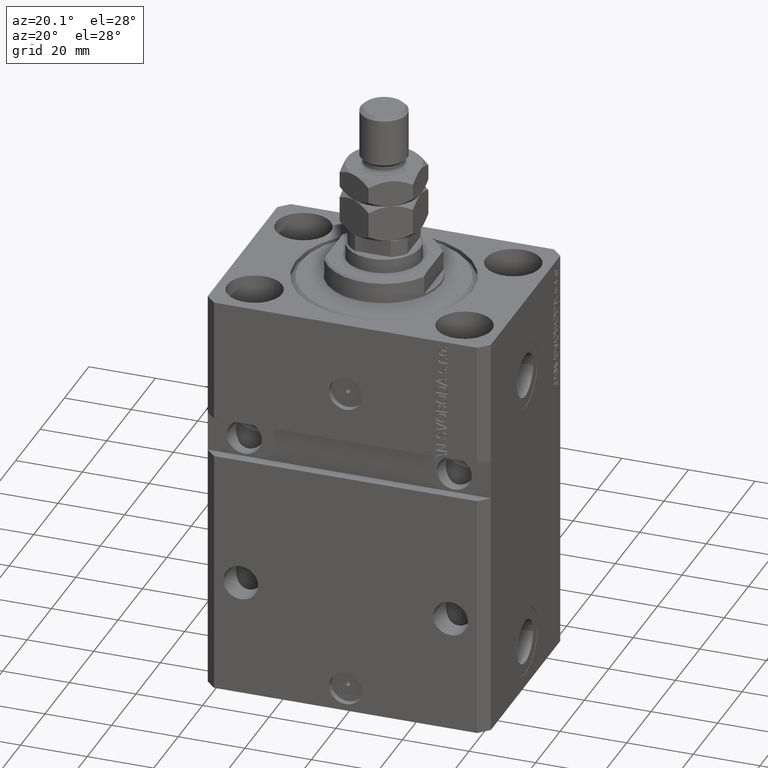
[diagram: clean part render]
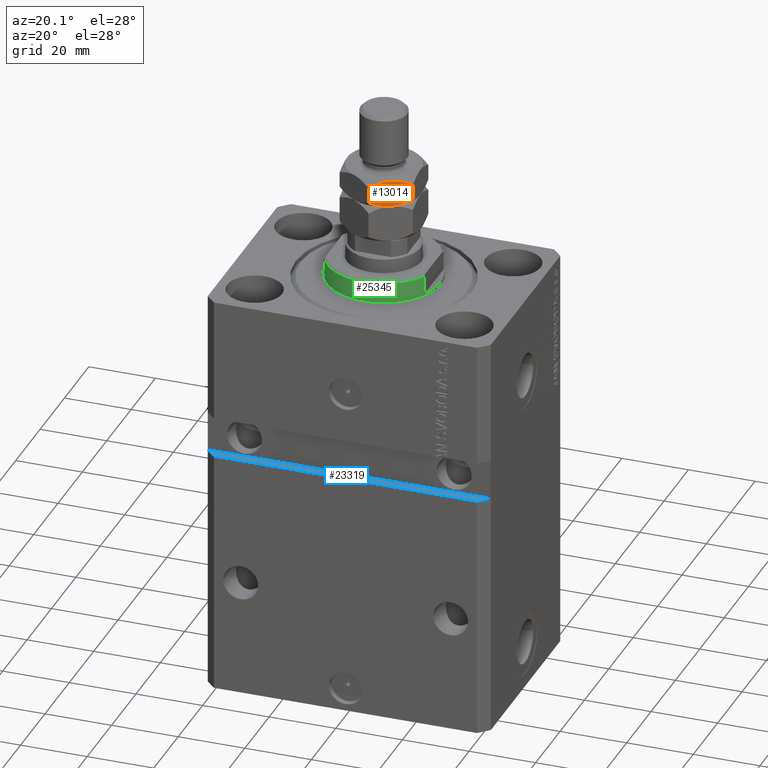
[diagram: same view with three faces highlighted in distinct colors, each labeled with its STEP entity id]
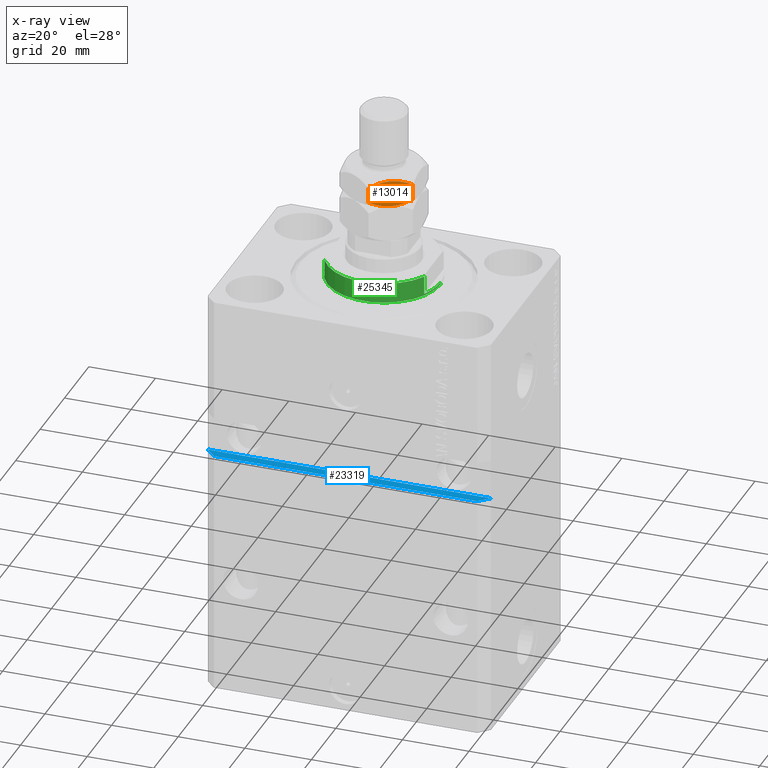
[diagram: x-ray of the same camera — body ghosted, the three highlighted faces saturated]
A machine part, auxiliary view with three faces highlighted in distinct colors.
The next image is the same camera in x-ray (body ghosted, the three faces saturated) — at least one of them is partly hidden behind the body in this view.
Their STEP definitions:

[orange] entity #13014 — the highlighted planar face has unit normal (-0.5, 0.866, 0).
#262 = CARTESIAN_POINT ( 'NONE',  ( 7.420105971005177103, -8.417705742396377033, 11.20812207486707557 ) ) ;
#505 = CARTESIAN_POINT ( 'NONE',  ( 10.13752086928278295, -6.848805519375900985, 12.20375336388174681 ) ) ;
#903 = CARTESIAN_POINT ( 'NONE',  ( -1.114322647986502597E-15, -12.70170592217176697, 17.29829407782823125 ) ) ;
#1904 = VECTOR ( 'NONE', #17535, 1000.000000000000000 ) ;
#2282 = CARTESIAN_POINT ( 'NONE',  ( 0.8614806024966414899, -12.20432986441868906, 12.20432986441860912 ) ) ;
#2583 = AXIS2_PLACEMENT_3D ( 'NONE', #22968, #30097, #33888 ) ;
#3888 = CARTESIAN_POINT ( 'NONE',  ( 10.99999999999999645, -6.350852961085881709, 19.00000000000000000 ) ) ;
#4256 = CARTESIAN_POINT ( 'NONE',  ( 5.499999999999998224, -9.526279441628817679, 19.00000000000000000 ) ) ;
#4608 = VERTEX_POINT ( 'NONE', #43131 ) ;
#6275 = VECTOR ( 'NONE', #8182, 1000.000000000000000 ) ;
#6341 = VERTEX_POINT ( 'NONE', #20393 ) ;
#6948 = CARTESIAN_POINT ( 'NONE',  ( -6.797443497229144639E-16, -12.70170592217176697, 12.70170592217176697 ) ) ;
#7354 = CARTESIAN_POINT ( 'NONE',  ( 3.115032419653386064, -10.90324111615047187, 18.67178078790958295 ) ) ;
#7446 = ORIENTED_EDGE ( 'NONE', *, *, #42311, .F. ) ;
#7883 = CARTESIAN_POINT ( 'NONE',  ( 5.499999999999994671, -9.526279441628823008, 11.00000000000000000 ) ) ;
#7996 = ORIENTED_EDGE ( 'NONE', *, *, #10793, .F. ) ;
#8182 = DIRECTION ( 'NONE',  ( -0.000000000000000000, -0.000000000000000000, -1.000000000000000000 ) ) ;
#10685 = EDGE_CURVE ( 'NONE', #26580, #37027, #15919, .T. ) ;
#10793 = EDGE_CURVE ( 'NONE', #37027, #4608, #21540, .T. ) ;
#11213 = CARTESIAN_POINT ( 'NONE',  ( 9.255521992360788985, -7.358027808391761404, 11.78062338754677718 ) ) ;
#11377 = CARTESIAN_POINT ( 'NONE',  ( 4.529374112020106757, -10.08667055933643830, 18.95634070256486936 ) ) ;
#11796 = CARTESIAN_POINT ( 'NONE',  ( -1.114322647986502597E-15, -12.70170592217176697, 17.29829407782823125 ) ) ;
#12769 = CARTESIAN_POINT ( 'NONE',  ( 5.499999999999994671, -9.526279441628823008, 11.00000000000000000 ) ) ;
#13014 = ADVANCED_FACE ( 'NONE', ( #16072 ), #19867, .F. ) ;
#14948 = EDGE_CURVE ( 'NONE', #28725, #33338, #40080, .T. ) ;
#15919 = B_SPLINE_CURVE_WITH_KNOTS ( 'NONE', 3,
 ( #903, #18268, #25162, #7354, #29440, #11377, #25642, #4256 ),
 .UNSPECIFIED., .F., .F.,
 ( 4, 2, 2, 4 ),
 ( 2.544311317622334175E-07, 0.003291871675740033840, 0.004937680298044169920, 0.006583488920348303831 ),
 .UNSPECIFIED. ) ;
#16072 = FACE_OUTER_BOUND ( 'NONE', #44674, .T. ) ;
#16792 = CARTESIAN_POINT ( 'NONE',  ( -6.797443497229144639E-16, -12.70170592217176697, 12.70170592217176697 ) ) ;
#17535 = DIRECTION ( 'NONE',  ( -0.000000000000000000, -0.000000000000000000, -1.000000000000000000 ) ) ;
#17876 = CARTESIAN_POINT ( 'NONE',  ( 7.884967580346608607, -8.149317767107175925, 11.32821921209040283 ) ) ;
#18268 = CARTESIAN_POINT ( 'NONE',  ( 0.8624791307172129384, -12.20375336388175036, 17.79624663611825142 ) ) ;
#19867 = PLANE ( 'NONE',  #2583 ) ;
#20067 = CARTESIAN_POINT ( 'NONE',  ( 5.499999999999994671, -9.526279441628823008, 11.00000000000000000 ) ) ;
#20393 = CARTESIAN_POINT ( 'NONE',  ( 10.99999999999999645, -6.350852961085881709, 12.70170592217176164 ) ) ;
#21540 = B_SPLINE_CURVE_WITH_KNOTS ( 'NONE', 3,
 ( #27269, #30140, #34385, #23247, #44607, #41745 ),
 .UNSPECIFIED., .F., .F.,
 ( 4, 2, 4 ),
 ( 0.006583488920348303831, 0.009852050593448713131, 0.01312061226654912330 ),
 .UNSPECIFIED. ) ;
#22968 = CARTESIAN_POINT ( 'NONE',  ( -1.239917741184855327E-15, -12.70170592217176697, 19.00000000000000000 ) ) ;
#23231 = CARTESIAN_POINT ( 'NONE',  ( 1.748214531935804894, -11.69237379155740975, 11.77768480452202837 ) ) ;
#23247 = CARTESIAN_POINT ( 'NONE',  ( 9.251785468064186446, -7.360185091700238935, 18.22231519547796097 ) ) ;
#23933 = CARTESIAN_POINT ( 'NONE',  ( 4.543329525579420824, -10.07861339756131080, 11.00000000000000888 ) ) ;
#24415 = CARTESIAN_POINT ( 'NONE',  ( -1.239917741184855327E-15, -12.70170592217176697, 19.00000000000000000 ) ) ;
#25162 = CARTESIAN_POINT ( 'NONE',  ( 1.744478007639206574, -11.69453107486588728, 18.21937661245321749 ) ) ;
#25642 = CARTESIAN_POINT ( 'NONE',  ( 5.018290712253357988, -9.804394428580488707, 18.99999999999999645 ) ) ;
#26580 = VERTEX_POINT ( 'NONE', #11796 ) ;
#27269 = CARTESIAN_POINT ( 'NONE',  ( 5.499999999999998224, -9.526279441628817679, 19.00000000000000000 ) ) ;
#28725 = VERTEX_POINT ( 'NONE', #20067 ) ;
#29149 = ORIENTED_EDGE ( 'NONE', *, *, #44463, .F. ) ;
#29440 = CARTESIAN_POINT ( 'NONE',  ( 3.579894028994818900, -10.63485314086127076, 18.79187792513291910 ) ) ;
#30097 = DIRECTION ( 'NONE',  ( -0.5000000000000003331, 0.8660254037844385966, 0.000000000000000000 ) ) ;
#30140 = CARTESIAN_POINT ( 'NONE',  ( 6.456670474420574735, -8.973945485696335211, 18.99999999999999289 ) ) ;
#32109 = CARTESIAN_POINT ( 'NONE',  ( 6.470625887979892354, -8.965888323921216596, 11.04365929743512531 ) ) ;
#32220 = EDGE_CURVE ( 'NONE', #26580, #33338, #46019, .T. ) ;
#32351 = CARTESIAN_POINT ( 'NONE',  ( 5.981709287746636683, -9.248164454677160862, 11.00000000000000355 ) ) ;
#32388 = ORIENTED_EDGE ( 'NONE', *, *, #10685, .F. ) ;
#33338 = VERTEX_POINT ( 'NONE', #6948 ) ;
#33822 = LINE ( 'NONE', #3888, #6275 ) ;
#33888 = DIRECTION ( 'NONE',  ( -0.8660254037844384856, -0.5000000000000002220, 0.000000000000000000 ) ) ;
#34385 = CARTESIAN_POINT ( 'NONE',  ( 7.397073880711843685, -8.431003325927234116, 18.83109139163523693 ) ) ;
#34830 = CARTESIAN_POINT ( 'NONE',  ( 3.602926119288149653, -10.62155555733041901, 11.16890860836476307 ) ) ;
#37027 = VERTEX_POINT ( 'NONE', #39793 ) ;
#37675 = ORIENTED_EDGE ( 'NONE', *, *, #14948, .F. ) ;
#39793 = CARTESIAN_POINT ( 'NONE',  ( 5.499999999999998224, -9.526279441628817679, 19.00000000000000000 ) ) ;
#40080 = B_SPLINE_CURVE_WITH_KNOTS ( 'NONE', 3,
 ( #12769, #23933, #34830, #23231, #2282, #16792 ),
 .UNSPECIFIED., .F., .F.,
 ( 4, 2, 4 ),
 ( 0.006583488920348300362, 0.009852050593448711396, 0.01312061226654912330 ),
 .UNSPECIFIED. ) ;
#41745 = CARTESIAN_POINT ( 'NONE',  ( 10.99999999999999645, -6.350852961085881709, 17.29829407782823480 ) ) ;
#42311 = EDGE_CURVE ( 'NONE', #6341, #28725, #45396, .T. ) ;
#43131 = CARTESIAN_POINT ( 'NONE',  ( 10.99999999999999645, -6.350852961085881709, 17.29829407782823480 ) ) ;
#43736 = CARTESIAN_POINT ( 'NONE',  ( 10.99999999999999645, -6.350852961085881709, 12.70170592217176164 ) ) ;
#44207 = ORIENTED_EDGE ( 'NONE', *, *, #32220, .T. ) ;
#44463 = EDGE_CURVE ( 'NONE', #4608, #6341, #33822, .T. ) ;
#44607 = CARTESIAN_POINT ( 'NONE',  ( 10.13851939750335163, -6.848229018838960513, 17.79567013558139621 ) ) ;
#44674 = EDGE_LOOP ( 'NONE', ( #7446, #29149, #7996, #32388, #44207, #37675 ) ) ;
#45396 = B_SPLINE_CURVE_WITH_KNOTS ( 'NONE', 3,
 ( #43736, #505, #11213, #17876, #262, #32109, #32351, #7883 ),
 .UNSPECIFIED., .F., .F.,
 ( 4, 2, 2, 4 ),
 ( 2.544311317614349830E-07, 0.003291871675740029504, 0.004937680298044164716, 0.006583488920348300362 ),
 .UNSPECIFIED. ) ;
#46019 = LINE ( 'NONE', #24415, #1904 ) ;

[blue] entity #23319 — the highlighted planar face has unit normal (0, 0, -1).
#274 = ORIENTED_EDGE ( 'NONE', *, *, #30501, .T. ) ;
#961 = CARTESIAN_POINT ( 'NONE',  ( -42.50000000000000000, -28.50000000000000711, -48.99999999999999289 ) ) ;
#4592 = VERTEX_POINT ( 'NONE', #32460 ) ;
#5141 = LINE ( 'NONE', #17694, #38254 ) ;
#5990 = CARTESIAN_POINT ( 'NONE',  ( -42.50000000000000000, -28.50000000000000711, -48.99999999999999289 ) ) ;
#7405 = LINE ( 'NONE', #961, #37381 ) ;
#8113 = DIRECTION ( 'NONE',  ( 1.000000000000000000, 1.632680918566406300E-16, 1.632680918566406300E-16 ) ) ;
#8980 = ORIENTED_EDGE ( 'NONE', *, *, #14645, .T. ) ;
#9085 = DIRECTION ( 'NONE',  ( 1.632680918566406300E-16, 1.920169436079225911E-32, -1.000000000000000000 ) ) ;
#9105 = DIRECTION ( 'NONE',  ( 0.7071067811865483499, 0.7071067811865467956, 1.154479749032188978E-16 ) ) ;
#11728 = CARTESIAN_POINT ( 'NONE',  ( -42.50000000000000000, -28.50000000000000711, -48.99999999999999289 ) ) ;
#12422 = DIRECTION ( 'NONE',  ( -1.000000000000000000, 0.000000000000000000, -1.632680918566406300E-16 ) ) ;
#12854 = ORIENTED_EDGE ( 'NONE', *, *, #23578, .F. ) ;
#14645 = EDGE_CURVE ( 'NONE', #24113, #4592, #37774, .T. ) ;
#17694 = CARTESIAN_POINT ( 'NONE',  ( -42.50000000000000000, -31.50000000000000711, -48.99999999999999289 ) ) ;
#20874 = VECTOR ( 'NONE', #38476, 1000.000000000000000 ) ;
#23319 = ADVANCED_FACE ( 'NONE', ( #27841 ), #34487, .F. ) ;
#23578 = EDGE_CURVE ( 'NONE', #24113, #34543, #7405, .T. ) ;
#24113 = VERTEX_POINT ( 'NONE', #11728 ) ;
#24493 = AXIS2_PLACEMENT_3D ( 'NONE', #5990, #9085, #12422 ) ;
#25175 = ORIENTED_EDGE ( 'NONE', *, *, #30685, .T. ) ;
#27841 = FACE_OUTER_BOUND ( 'NONE', #37734, .T. ) ;
#29157 = VERTEX_POINT ( 'NONE', #43722 ) ;
#30501 = EDGE_CURVE ( 'NONE', #4592, #29157, #5141, .T. ) ;
#30650 = CARTESIAN_POINT ( 'NONE',  ( -42.50000000000000711, -28.49999999999999289, -48.99999999999998579 ) ) ;
#30685 = EDGE_CURVE ( 'NONE', #29157, #34543, #41636, .T. ) ;
#32460 = CARTESIAN_POINT ( 'NONE',  ( -39.50000000000000000, -31.50000000000000711, -48.99999999999999289 ) ) ;
#34266 = CARTESIAN_POINT ( 'NONE',  ( 39.50000000000000000, -31.50000000000000711, -48.99999999999997158 ) ) ;
#34487 = PLANE ( 'NONE',  #24493 ) ;
#34543 = VERTEX_POINT ( 'NONE', #43933 ) ;
#37381 = VECTOR ( 'NONE', #8113, 1000.000000000000000 ) ;
#37734 = EDGE_LOOP ( 'NONE', ( #25175, #12854, #8980, #274 ) ) ;
#37774 = LINE ( 'NONE', #30650, #20874 ) ;
#38254 = VECTOR ( 'NONE', #45948, 1000.000000000000000 ) ;
#38476 = DIRECTION ( 'NONE',  ( 0.7071067811865472397, -0.7071067811865479058, 1.154479749032186513E-16 ) ) ;
#39001 = VECTOR ( 'NONE', #9105, 1000.000000000000000 ) ;
#41636 = LINE ( 'NONE', #34266, #39001 ) ;
#43722 = CARTESIAN_POINT ( 'NONE',  ( 39.50000000000001421, -31.49999999999999289, -48.99999999999997868 ) ) ;
#43933 = CARTESIAN_POINT ( 'NONE',  ( 42.50000000000001421, -28.49999999999999289, -48.99999999999997868 ) ) ;
#45948 = DIRECTION ( 'NONE',  ( 1.000000000000000000, 1.632680918566406300E-16, 1.632680918566406300E-16 ) ) ;

[green] entity #25345 — the highlighted cylindrical surface (partial cylindrical patch) has radius 17 mm, axis along (0, 0, -1).
#768 = VERTEX_POINT ( 'NONE', #9174 ) ;
#3874 = ORIENTED_EDGE ( 'NONE', *, *, #14844, .T. ) ;
#4944 = DIRECTION ( 'NONE',  ( -0.000000000000000000, -0.000000000000000000, 1.000000000000000000 ) ) ;
#5290 = EDGE_CURVE ( 'NONE', #14542, #768, #22989, .T. ) ;
#6008 = ORIENTED_EDGE ( 'NONE', *, *, #10626, .F. ) ;
#6221 = LINE ( 'NONE', #6919, #40322 ) ;
#6919 = CARTESIAN_POINT ( 'NONE',  ( 15.00000000000000000, -8.000000000000001776, -7.000000000000000000 ) ) ;
#9174 = CARTESIAN_POINT ( 'NONE',  ( -17.00000000000000000, 2.081899558550500280E-15, -0.4999999999999995559 ) ) ;
#10626 = EDGE_CURVE ( 'NONE', #38839, #40861, #38196, .T. ) ;
#10913 = AXIS2_PLACEMENT_3D ( 'NONE', #24695, #28024, #28504 ) ;
#11543 = VERTEX_POINT ( 'NONE', #30668 ) ;
#12563 = EDGE_CURVE ( 'NONE', #38839, #12722, #33709, .T. ) ;
#12722 = VERTEX_POINT ( 'NONE', #23720 ) ;
#14542 = VERTEX_POINT ( 'NONE', #41103 ) ;
#14844 = EDGE_CURVE ( 'NONE', #12722, #11543, #31513, .T. ) ;
#14965 = DIRECTION ( 'NONE',  ( 1.000000000000000000, 0.000000000000000000, 0.000000000000000000 ) ) ;
#15019 = CARTESIAN_POINT ( 'NONE',  ( -14.99999999999999645, -8.000000000000003553, -1.000000000000000000 ) ) ;
#16351 = VERTEX_POINT ( 'NONE', #43574 ) ;
#19234 = DIRECTION ( 'NONE',  ( 0.000000000000000000, 0.000000000000000000, -1.000000000000000000 ) ) ;
#19434 = DIRECTION ( 'NONE',  ( 1.000000000000000000, 0.000000000000000000, 0.000000000000000000 ) ) ;
#20622 = VECTOR ( 'NONE', #41059, 1000.000000000000000 ) ;
#21242 = EDGE_CURVE ( 'NONE', #40861, #768, #36803, .T. ) ;
#22538 = CYLINDRICAL_SURFACE ( 'NONE', #23676, 17.00000000000000000 ) ;
#22989 = CIRCLE ( 'NONE', #35860, 17.00000000000000000 ) ;
#23033 = DIRECTION ( 'NONE',  ( -1.000000000000000000, 0.000000000000000000, 0.000000000000000000 ) ) ;
#23097 = VECTOR ( 'NONE', #19234, 1000.000000000000000 ) ;
#23541 = EDGE_CURVE ( 'NONE', #16351, #11543, #6221, .T. ) ;
#23676 = AXIS2_PLACEMENT_3D ( 'NONE', #26327, #4944, #19434 ) ;
#23720 = CARTESIAN_POINT ( 'NONE',  ( -15.00000000000000000, -8.000000000000001776, -6.500000000000014211 ) ) ;
#23773 = ORIENTED_EDGE ( 'NONE', *, *, #39184, .F. ) ;
#23932 = AXIS2_PLACEMENT_3D ( 'NONE', #44594, #26332, #26558 ) ;
#24555 = LINE ( 'NONE', #39044, #42979 ) ;
#24695 = CARTESIAN_POINT ( 'NONE',  ( 0.000000000000000000, 0.000000000000000000, -1.000000000000000000 ) ) ;
#25345 = ADVANCED_FACE ( 'NONE', ( #37477 ), #22538, .T. ) ;
#25511 = CIRCLE ( 'NONE', #33092, 17.00000000000000000 ) ;
#26327 = CARTESIAN_POINT ( 'NONE',  ( 0.000000000000000000, 0.000000000000000000, -7.000000000000000000 ) ) ;
#26332 = DIRECTION ( 'NONE',  ( 0.000000000000000000, 0.000000000000000000, 1.000000000000000000 ) ) ;
#26558 = DIRECTION ( 'NONE',  ( -1.000000000000000000, 0.000000000000000000, 0.000000000000000000 ) ) ;
#27266 = CARTESIAN_POINT ( 'NONE',  ( 17.00000000000000000, 0.000000000000000000, -1.000000000000000000 ) ) ;
#27312 = VERTEX_POINT ( 'NONE', #27266 ) ;
#28024 = DIRECTION ( 'NONE',  ( 0.000000000000000000, 0.000000000000000000, -1.000000000000000000 ) ) ;
#28504 = DIRECTION ( 'NONE',  ( -1.000000000000000000, 0.000000000000000000, 0.000000000000000000 ) ) ;
#28577 = CARTESIAN_POINT ( 'NONE',  ( -15.00000000000000000, -8.000000000000001776, -7.000000000000000000 ) ) ;
#30160 = CARTESIAN_POINT ( 'NONE',  ( 0.000000000000000000, 0.000000000000000000, -1.000000000000000000 ) ) ;
#30668 = CARTESIAN_POINT ( 'NONE',  ( 15.00000000000000000, -8.000000000000001776, -6.500000000000013323 ) ) ;
#31513 = CIRCLE ( 'NONE', #23932, 17.00000000000000000 ) ;
#31728 = ORIENTED_EDGE ( 'NONE', *, *, #23541, .F. ) ;
#32099 = DIRECTION ( 'NONE',  ( 0.000000000000000000, 0.000000000000000000, -1.000000000000000000 ) ) ;
#32146 = DIRECTION ( 'NONE',  ( -0.000000000000000000, -0.000000000000000000, 1.000000000000000000 ) ) ;
#33092 = AXIS2_PLACEMENT_3D ( 'NONE', #30160, #44625, #23033 ) ;
#33709 = LINE ( 'NONE', #28577, #23097 ) ;
#34157 = CARTESIAN_POINT ( 'NONE',  ( -17.00000000000000000, 2.081899558550500280E-15, -7.000000000000000000 ) ) ;
#34799 = ORIENTED_EDGE ( 'NONE', *, *, #5290, .T. ) ;
#35860 = AXIS2_PLACEMENT_3D ( 'NONE', #43695, #40372, #14965 ) ;
#36803 = LINE ( 'NONE', #34157, #20622 ) ;
#36971 = ORIENTED_EDGE ( 'NONE', *, *, #21242, .F. ) ;
#37477 = FACE_OUTER_BOUND ( 'NONE', #40976, .T. ) ;
#38160 = ORIENTED_EDGE ( 'NONE', *, *, #40422, .T. ) ;
#38196 = CIRCLE ( 'NONE', #10913, 17.00000000000000000 ) ;
#38839 = VERTEX_POINT ( 'NONE', #15019 ) ;
#39044 = CARTESIAN_POINT ( 'NONE',  ( 17.00000000000000000, 0.000000000000000000, -7.000000000000000000 ) ) ;
#39184 = EDGE_CURVE ( 'NONE', #27312, #16351, #25511, .T. ) ;
#40322 = VECTOR ( 'NONE', #32099, 1000.000000000000000 ) ;
#40372 = DIRECTION ( 'NONE',  ( -0.000000000000000000, -0.000000000000000000, -1.000000000000000000 ) ) ;
#40422 = EDGE_CURVE ( 'NONE', #27312, #14542, #24555, .T. ) ;
#40861 = VERTEX_POINT ( 'NONE', #45049 ) ;
#40976 = EDGE_LOOP ( 'NONE', ( #36971, #6008, #44830, #3874, #31728, #23773, #38160, #34799 ) ) ;
#41059 = DIRECTION ( 'NONE',  ( -0.000000000000000000, -0.000000000000000000, 1.000000000000000000 ) ) ;
#41103 = CARTESIAN_POINT ( 'NONE',  ( 17.00000000000000000, 0.000000000000000000, -0.4999999999999995559 ) ) ;
#42979 = VECTOR ( 'NONE', #32146, 1000.000000000000000 ) ;
#43574 = CARTESIAN_POINT ( 'NONE',  ( 14.99999999999999645, -8.000000000000003553, -1.000000000000000000 ) ) ;
#43695 = CARTESIAN_POINT ( 'NONE',  ( 0.000000000000000000, 0.000000000000000000, -0.4999999999999995559 ) ) ;
#44594 = CARTESIAN_POINT ( 'NONE',  ( 0.000000000000000000, 0.000000000000000000, -6.500000000000013323 ) ) ;
#44625 = DIRECTION ( 'NONE',  ( 0.000000000000000000, 0.000000000000000000, -1.000000000000000000 ) ) ;
#44830 = ORIENTED_EDGE ( 'NONE', *, *, #12563, .T. ) ;
#45049 = CARTESIAN_POINT ( 'NONE',  ( -17.00000000000000000, 2.081899558550500280E-15, -1.000000000000000000 ) ) ;